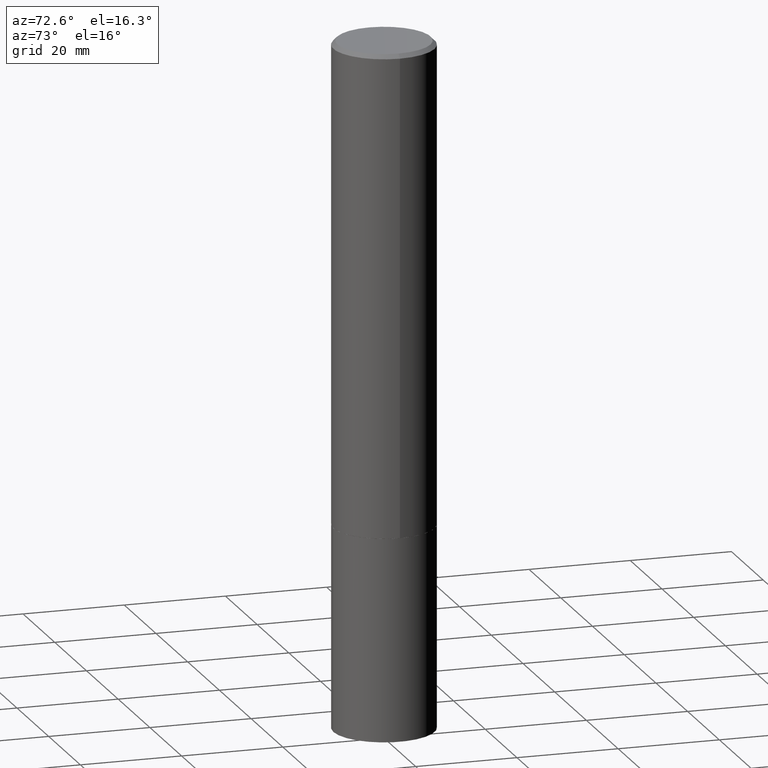
[diagram: clean part render]
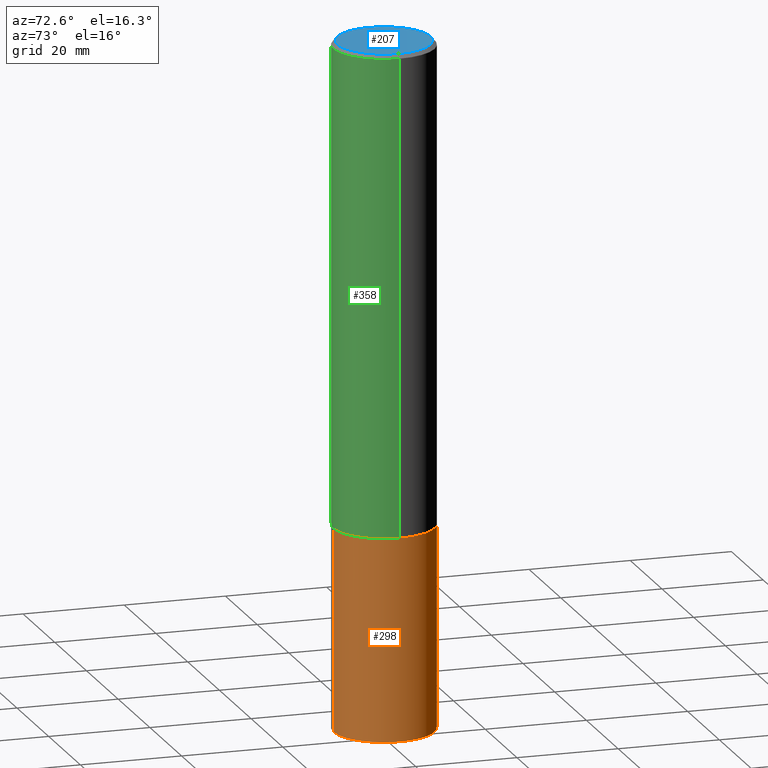
[diagram: same view with three faces highlighted in distinct colors, each labeled with its STEP entity id]
A machine part, auxiliary view with three faces highlighted in distinct colors.
Their STEP definitions:

[orange] entity #298 — the highlighted cylindrical surface (partial cylindrical patch) has radius 10 mm, axis along (-0, 0, 1).
#8 = VERTEX_POINT ( 'NONE', #189 ) ;
#19 = DIRECTION ( 'NONE',  ( -6.982962677686265133E-15, -1.000000000000000000, 4.163344669033674845E-15 ) ) ;
#21 = VECTOR ( 'NONE', #243, 39.37007874015748143 ) ;
#36 = EDGE_CURVE ( 'NONE', #8, #274, #59, .T. ) ;
#42 = CARTESIAN_POINT ( 'NONE',  ( 9.146053335132411814E-29, -1.305814020727336734E-14, -3.740000000000000657 ) ) ;
#58 = LINE ( 'NONE', #362, #139 ) ;
#59 = CIRCLE ( 'NONE', #73, 0.3937000000000000499 ) ;
#62 = VERTEX_POINT ( 'NONE', #294 ) ;
#65 = ORIENTED_EDGE ( 'NONE', *, *, #96, .T. ) ;
#73 = AXIS2_PLACEMENT_3D ( 'NONE', #334, #142, #251 ) ;
#96 = EDGE_CURVE ( 'NONE', #274, #140, #357, .T. ) ;
#114 = CARTESIAN_POINT ( 'NONE',  ( 9.146053335132411814E-29, -1.305814020727336734E-14, -3.740000000000000657 ) ) ;
#121 = DIRECTION ( 'NONE',  ( -6.982962677686265133E-15, -1.000000000000000000, 4.163344669033674845E-15 ) ) ;
#139 = VECTOR ( 'NONE', #364, 39.37007874015748143 ) ;
#140 = VERTEX_POINT ( 'NONE', #231 ) ;
#142 = DIRECTION ( 'NONE',  ( -2.446583119360105066E-29, 3.489885578953823714E-15, 1.000000000000000000 ) ) ;
#144 = FACE_OUTER_BOUND ( 'NONE', #340, .T. ) ;
#159 = CARTESIAN_POINT ( 'NONE',  ( 2.797406750687605505E-15, 0.3936999999999870048, -3.740000000000001990 ) ) ;
#166 = AXIS2_PLACEMENT_3D ( 'NONE', #114, #188, #121 ) ;
#174 = ORIENTED_EDGE ( 'NONE', *, *, #36, .T. ) ;
#176 = AXIS2_PLACEMENT_3D ( 'NONE', #42, #183, #19 ) ;
#183 = DIRECTION ( 'NONE',  ( -2.446583119360105066E-29, 3.489885578953823714E-15, 1.000000000000000000 ) ) ;
#188 = DIRECTION ( 'NONE',  ( -2.446583119360105066E-29, 3.489885578953823714E-15, 1.000000000000000000 ) ) ;
#189 = CARTESIAN_POINT ( 'NONE',  ( -2.749192406204953055E-15, -0.3937000000000185906, -5.315000000000000391 ) ) ;
#198 = EDGE_CURVE ( 'NONE', #62, #140, #313, .T. ) ;
#223 = CYLINDRICAL_SURFACE ( 'NONE', #166, 0.3937000000000000499 ) ;
#230 = ORIENTED_EDGE ( 'NONE', *, *, #365, .F. ) ;
#231 = CARTESIAN_POINT ( 'NONE',  ( 2.797406750687644160E-15, 0.3936999999999870048, -3.740000000000001990 ) ) ;
#243 = DIRECTION ( 'NONE',  ( -2.446583119360105066E-29, 3.489885578953823714E-15, 1.000000000000000000 ) ) ;
#251 = DIRECTION ( 'NONE',  ( -6.982962677686265133E-15, -1.000000000000000000, 2.775563112689116301E-15 ) ) ;
#274 = VERTEX_POINT ( 'NONE', #355 ) ;
#294 = CARTESIAN_POINT ( 'NONE',  ( -2.749192406204991709E-15, -0.3937000000000130950, -3.739999999999998881 ) ) ;
#298 = ADVANCED_FACE ( 'NONE', ( #144 ), #223, .T. ) ;
#313 = CIRCLE ( 'NONE', #176, 0.3937000000000000499 ) ;
#314 = ORIENTED_EDGE ( 'NONE', *, *, #198, .F. ) ;
#334 = CARTESIAN_POINT ( 'NONE',  ( 1.299942174812458059E-28, -1.855470999412564443E-14, -5.315000000000001279 ) ) ;
#340 = EDGE_LOOP ( 'NONE', ( #174, #65, #314, #230 ) ) ;
#355 = CARTESIAN_POINT ( 'NONE',  ( 2.797406750687624833E-15, 0.3936999999999814537, -5.315000000000003055 ) ) ;
#357 = LINE ( 'NONE', #159, #21 ) ;
#362 = CARTESIAN_POINT ( 'NONE',  ( -2.749192406204991709E-15, -0.3937000000000130950, -3.739999999999998881 ) ) ;
#364 = DIRECTION ( 'NONE',  ( -2.446583119360105066E-29, 3.489885578953823714E-15, 1.000000000000000000 ) ) ;
#365 = EDGE_CURVE ( 'NONE', #8, #62, #58, .T. ) ;

[blue] entity #207 — the highlighted planar face has unit normal (0, -0, -1).
#23 = DIRECTION ( 'NONE',  ( 2.438088387897960049E-29, -3.491481338843145188E-15, -1.000000000000000000 ) ) ;
#43 = DIRECTION ( 'NONE',  ( -2.445468806185136597E-29, 3.491481338843145583E-15, 1.000000000000000000 ) ) ;
#47 = AXIS2_PLACEMENT_3D ( 'NONE', #268, #43, #102 ) ;
#76 = CARTESIAN_POINT ( 'NONE',  ( 0.3624500000000000499, -2.648337176426896411E-15, 4.818985154662952747E-18 ) ) ;
#85 = EDGE_CURVE ( 'NONE', #214, #155, #266, .T. ) ;
#92 = CARTESIAN_POINT ( 'NONE',  ( -0.3624500000000000499, 2.585529218446811143E-15, 4.818985154626951724E-18 ) ) ;
#97 = DIRECTION ( 'NONE',  ( -1.000000000000000000, 6.982962677686265922E-15, -4.876176775795935793E-29 ) ) ;
#102 = DIRECTION ( 'NONE',  ( 1.000000000000000000, -6.982962677686266711E-15, 4.876156645145296500E-29 ) ) ;
#117 = AXIS2_PLACEMENT_3D ( 'NONE', #349, #23, #97 ) ;
#155 = VERTEX_POINT ( 'NONE', #92 ) ;
#184 = ORIENTED_EDGE ( 'NONE', *, *, #85, .T. ) ;
#207 = ADVANCED_FACE ( 'NONE', ( #210 ), #359, .F. ) ;
#210 = FACE_OUTER_BOUND ( 'NONE', #293, .T. ) ;
#214 = VERTEX_POINT ( 'NONE', #76 ) ;
#241 = AXIS2_PLACEMENT_3D ( 'NONE', #253, #338, #310 ) ;
#253 = CARTESIAN_POINT ( 'NONE',  ( -1.178467787315321927E-46, 1.682539673960461744E-32, 4.818985154644842843E-18 ) ) ;
#266 = CIRCLE ( 'NONE', #47, 0.3624500000000000499 ) ;
#268 = CARTESIAN_POINT ( 'NONE',  ( -1.178467787315321927E-46, 1.682539673960461744E-32, 4.818985154644842843E-18 ) ) ;
#293 = EDGE_LOOP ( 'NONE', ( #320, #184 ) ) ;
#310 = DIRECTION ( 'NONE',  ( 1.000000000000000000, -6.982962677686266711E-15, 4.876156645145296500E-29 ) ) ;
#320 = ORIENTED_EDGE ( 'NONE', *, *, #322, .T. ) ;
#322 = EDGE_CURVE ( 'NONE', #155, #214, #326, .T. ) ;
#326 = CIRCLE ( 'NONE', #241, 0.3624500000000000499 ) ;
#338 = DIRECTION ( 'NONE',  ( -2.445468806185136597E-29, 3.491481338843145583E-15, 1.000000000000000000 ) ) ;
#349 = CARTESIAN_POINT ( 'NONE',  ( -5.892338936576609633E-47, 8.412698369802308719E-33, 2.409492577322421421E-18 ) ) ;
#359 = PLANE ( 'NONE',  #117 ) ;

[green] entity #358 — the highlighted cylindrical surface (partial cylindrical patch) has radius 10 mm, axis along (-0, 0, 1).
#2 = CYLINDRICAL_SURFACE ( 'NONE', #157, 0.3937000000000002164 ) ;
#7 = VECTOR ( 'NONE', #305, 39.37007874015748143 ) ;
#48 = VERTEX_POINT ( 'NONE', #51 ) ;
#51 = CARTESIAN_POINT ( 'NONE',  ( 0.3937000000000000499, -2.858301198043932317E-15, -0.03125000000000013184 ) ) ;
#53 = DIRECTION ( 'NONE',  ( -2.445468806185136597E-29, 3.491481338843145583E-15, 1.000000000000000000 ) ) ;
#57 = DIRECTION ( 'NONE',  ( 1.000000000000000000, -6.982962677686265922E-15, 0.000000000000000000 ) ) ;
#61 = ORIENTED_EDGE ( 'NONE', *, *, #336, .F. ) ;
#98 = VERTEX_POINT ( 'NONE', #137 ) ;
#99 = CIRCLE ( 'NONE', #308, 0.3937000000000000499 ) ;
#112 = DIRECTION ( 'NONE',  ( -2.445468806185136597E-29, 3.491481338843145583E-15, 1.000000000000000000 ) ) ;
#118 = DIRECTION ( 'NONE',  ( -2.445468806185136597E-29, 3.491481338843145583E-15, 1.000000000000000000 ) ) ;
#119 = EDGE_CURVE ( 'NONE', #256, #301, #215, .T. ) ;
#120 = ORIENTED_EDGE ( 'NONE', *, *, #129, .T. ) ;
#129 = EDGE_CURVE ( 'NONE', #256, #98, #248, .T. ) ;
#132 = ORIENTED_EDGE ( 'NONE', *, *, #119, .F. ) ;
#134 = CARTESIAN_POINT ( 'NONE',  ( -0.3937000000000004940, -1.025898771591642474E-14, -3.739499999999999602 ) ) ;
#137 = CARTESIAN_POINT ( 'NONE',  ( 0.3937000000000004940, -1.580558687280902827E-14, -3.739499999999999602 ) ) ;
#143 = EDGE_CURVE ( 'NONE', #98, #48, #179, .T. ) ;
#157 = AXIS2_PLACEMENT_3D ( 'NONE', #161, #112, #335 ) ;
#161 = CARTESIAN_POINT ( 'NONE',  ( 0.000000000000000000, 0.000000000000000000, 0.000000000000000000 ) ) ;
#168 = FACE_OUTER_BOUND ( 'NONE', #289, .T. ) ;
#179 = LINE ( 'NONE', #204, #292 ) ;
#187 = CARTESIAN_POINT ( 'NONE',  ( -0.3937000000000002164, 2.797406750687515970E-15, -1.936584745033357576E-29 ) ) ;
#197 = DIRECTION ( 'NONE',  ( 1.000000000000000000, -6.982962677686265133E-15, 0.000000000000000000 ) ) ;
#204 = CARTESIAN_POINT ( 'NONE',  ( 0.3937000000000002164, -2.749192406205084794E-15, 1.919750796630861012E-29 ) ) ;
#215 = LINE ( 'NONE', #187, #7 ) ;
#220 = AXIS2_PLACEMENT_3D ( 'NONE', #254, #118, #197 ) ;
#248 = CIRCLE ( 'NONE', #220, 0.3937000000000004940 ) ;
#254 = CARTESIAN_POINT ( 'NONE',  ( 9.144830600729317891E-29, -1.305639446660394189E-14, -3.739499999999999602 ) ) ;
#256 = VERTEX_POINT ( 'NONE', #134 ) ;
#258 = ORIENTED_EDGE ( 'NONE', *, *, #143, .T. ) ;
#281 = CARTESIAN_POINT ( 'NONE',  ( -0.3937000000000000499, -3.785344878533878345E-15, -0.03125000000000013184 ) ) ;
#289 = EDGE_LOOP ( 'NONE', ( #132, #120, #258, #61 ) ) ;
#292 = VECTOR ( 'NONE', #341, 39.37007874015748143 ) ;
#301 = VERTEX_POINT ( 'NONE', #281 ) ;
#305 = DIRECTION ( 'NONE',  ( -2.445468806185136877E-29, 3.491481338843145188E-15, 1.000000000000000000 ) ) ;
#308 = AXIS2_PLACEMENT_3D ( 'NONE', #339, #53, #57 ) ;
#335 = DIRECTION ( 'NONE',  ( 1.000000000000000000, -6.982962677686266711E-15, 4.876176775795935793E-29 ) ) ;
#336 = EDGE_CURVE ( 'NONE', #301, #48, #99, .T. ) ;
#339 = CARTESIAN_POINT ( 'NONE',  ( 7.642090019328584270E-31, -1.091087918388487555E-16, -0.03125000000000013184 ) ) ;
#341 = DIRECTION ( 'NONE',  ( -2.445468806185136877E-29, 3.491481338843145188E-15, 1.000000000000000000 ) ) ;
#358 = ADVANCED_FACE ( 'NONE', ( #168 ), #2, .T. ) ;